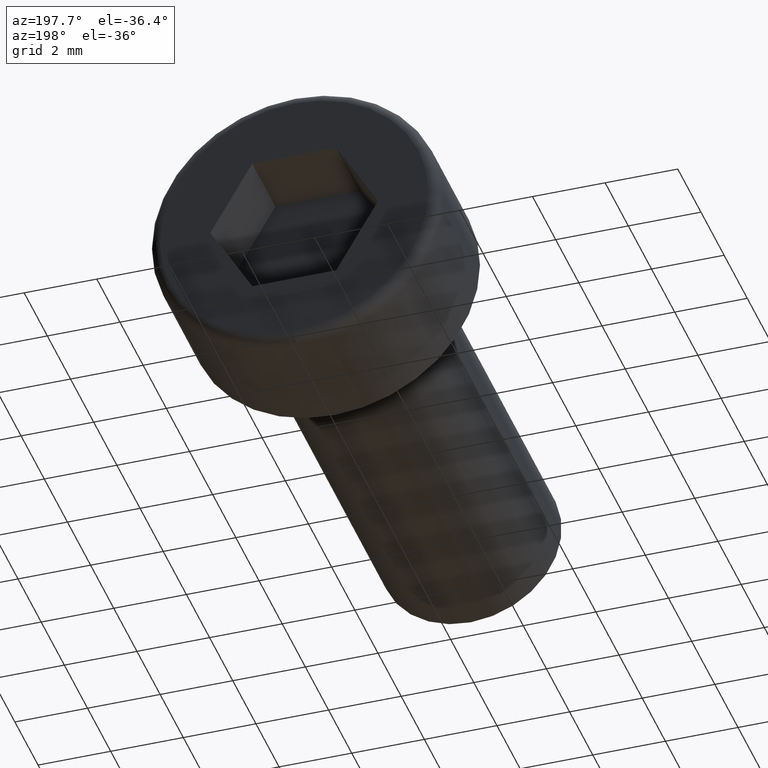
[diagram: clean part render]
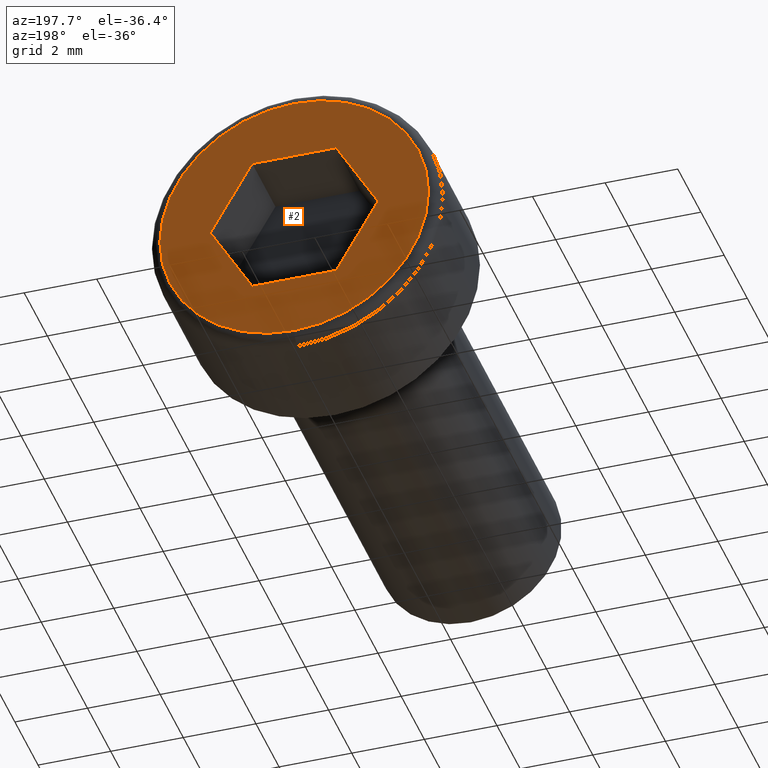
[diagram: same view with one face highlighted and labeled with its STEP entity id]
A machine part, auxiliary view. The second image highlights one B-rep face of the part: STEP entity #2.
In plain terms, the highlighted planar face has unit normal (0, 1, 0).
Its self-contained STEP definition (entity closure, byte-faithful):
#2 = ADVANCED_FACE ( 'NONE', ( #287, #289 ), #306, .T. ) ;
#3 = VECTOR ( 'NONE', #100, 1000.000000000000000 ) ;
#5 = LINE ( 'NONE', #95, #3 ) ;
#6 = VECTOR ( 'NONE', #156, 1000.000000000000100 ) ;
#13 = VECTOR ( 'NONE', #177, 1000.000000000000200 ) ;
#14 = LINE ( 'NONE', #171, #13 ) ;
#16 = LINE ( 'NONE', #167, #17 ) ;
#17 = VECTOR ( 'NONE', #159, 1000.000000000000000 ) ;
#22 = DIRECTION ( 'NONE',  ( 0.0000000000000000000, 0.0000000000000000000, 1.000000000000000000 ) ) ;
#30 = DIRECTION ( 'NONE',  ( 0.0000000000000000000, 1.000000000000000000, 0.0000000000000000000 ) ) ;
#32 = CARTESIAN_POINT ( 'NONE',  ( 0.0000000000000000000, 3.500000000000000000, 0.0000000000000000000 ) ) ;
#49 = CARTESIAN_POINT ( 'NONE',  ( -1.154700538379250400, 3.500000000000000000, 2.000000000000000900 ) ) ;
#58 = CARTESIAN_POINT ( 'NONE',  ( 1.154700538379250800, 3.500000000000000000, 2.000000000000000900 ) ) ;
#95 = CARTESIAN_POINT ( 'NONE',  ( 1.154700538379251200, 3.500000000000000000, -1.999999999999999100 ) ) ;
#100 = DIRECTION ( 'NONE',  ( -1.000000000000000000, 0.0000000000000000000, 1.877893248421447300E-016 ) ) ;
#107 = CARTESIAN_POINT ( 'NONE',  ( -1.154700538379254100, 3.500000000000000000, -1.999999999999998700 ) ) ;
#108 = DIRECTION ( 'NONE',  ( -0.4999999999999998900, 0.0000000000000000000, 0.8660254037844386000 ) ) ;
#147 = DIRECTION ( 'NONE',  ( 0.0000000000000000000, 0.0000000000000000000, 1.000000000000000000 ) ) ;
#148 = DIRECTION ( 'NONE',  ( 0.0000000000000000000, 1.000000000000000000, 0.0000000000000000000 ) ) ;
#149 = CARTESIAN_POINT ( 'NONE',  ( 0.0000000000000000000, 3.500000000000000000, 0.0000000000000000000 ) ) ;
#156 = DIRECTION ( 'NONE',  ( 0.5000000000000003300, 0.0000000000000000000, 0.8660254037844384900 ) ) ;
#159 = DIRECTION ( 'NONE',  ( 1.000000000000000000, 0.0000000000000000000, 0.0000000000000000000 ) ) ;
#160 = DIRECTION ( 'NONE',  ( 0.5000000000000001100, 0.0000000000000000000, -0.8660254037844386000 ) ) ;
#161 = CARTESIAN_POINT ( 'NONE',  ( -2.309401076758504300, 3.500000000000000000, -1.722390880164080500E-015 ) ) ;
#166 = CARTESIAN_POINT ( 'NONE',  ( 1.154700538379250800, 3.500000000000000000, 2.000000000000000900 ) ) ;
#167 = CARTESIAN_POINT ( 'NONE',  ( -1.154700538379250400, 3.500000000000000000, 2.000000000000000900 ) ) ;
#171 = CARTESIAN_POINT ( 'NONE',  ( 2.309401076758502900, 3.500000000000000000, 4.821375040128190100E-016 ) ) ;
#177 = DIRECTION ( 'NONE',  ( -0.5000000000000001100, 0.0000000000000000000, -0.8660254037844384900 ) ) ;
#187 = CARTESIAN_POINT ( 'NONE',  ( 0.0000000000000000000, 3.500000000000000000, 3.700000000000000200 ) ) ;
#195 = CARTESIAN_POINT ( 'NONE',  ( 2.309401076758502900, 3.500000000000000000, 4.821375040128190100E-016 ) ) ;
#200 = CARTESIAN_POINT ( 'NONE',  ( 4.714890176717309500E-016, 3.500000000000000000, -3.700000000000000200 ) ) ;
#206 = CARTESIAN_POINT ( 'NONE',  ( 1.154700538379251200, 3.500000000000000000, -1.999999999999999100 ) ) ;
#208 = CARTESIAN_POINT ( 'NONE',  ( -2.309401076758504700, 3.500000000000000000, -1.517883041479706200E-015 ) ) ;
#209 = CIRCLE ( 'NONE', #471, 3.700000000000000200 ) ;
#212 = LINE ( 'NONE', #107, #218 ) ;
#218 = VECTOR ( 'NONE', #108, 1000.000000000000200 ) ;
#287 = FACE_BOUND ( 'NONE', #398, .T. ) ;
#289 = FACE_OUTER_BOUND ( 'NONE', #399, .T. ) ;
#294 = ORIENTED_EDGE ( 'NONE', *, *, #435, .T. ) ;
#298 = CIRCLE ( 'NONE', #464, 3.700000000000000200 ) ;
#300 = VECTOR ( 'NONE', #160, 1000.000000000000100 ) ;
#306 = PLANE ( 'NONE',  #451 ) ;
#307 = DIRECTION ( 'NONE',  ( 0.0000000000000000000, -0.0000000000000000000, 1.000000000000000000 ) ) ;
#308 = DIRECTION ( 'NONE',  ( 0.0000000000000000000, 1.000000000000000000, 0.0000000000000000000 ) ) ;
#309 = CARTESIAN_POINT ( 'NONE',  ( 0.0000000000000000000, 3.500000000000000000, 0.0000000000000000000 ) ) ;
#310 = CARTESIAN_POINT ( 'NONE',  ( -1.154700538379254100, 3.500000000000000000, -1.999999999999998700 ) ) ;
#319 = VERTEX_POINT ( 'NONE', #208 ) ;
#323 = VERTEX_POINT ( 'NONE', #310 ) ;
#324 = VERTEX_POINT ( 'NONE', #49 ) ;
#326 = VERTEX_POINT ( 'NONE', #58 ) ;
#338 = VERTEX_POINT ( 'NONE', #206 ) ;
#340 = VERTEX_POINT ( 'NONE', #200 ) ;
#342 = VERTEX_POINT ( 'NONE', #195 ) ;
#347 = VERTEX_POINT ( 'NONE', #187 ) ;
#398 = EDGE_LOOP ( 'NONE', ( #513, #511, #512, #509, #507, #508 ) ) ;
#399 = EDGE_LOOP ( 'NONE', ( #505, #294 ) ) ;
#413 = EDGE_CURVE ( 'NONE', #323, #319, #212, .T. ) ;
#415 = EDGE_CURVE ( 'NONE', #338, #323, #5, .T. ) ;
#420 = EDGE_CURVE ( 'NONE', #347, #340, #298, .T. ) ;
#431 = EDGE_CURVE ( 'NONE', #342, #338, #14, .T. ) ;
#432 = EDGE_CURVE ( 'NONE', #326, #342, #557, .T. ) ;
#433 = EDGE_CURVE ( 'NONE', #324, #326, #16, .T. ) ;
#434 = EDGE_CURVE ( 'NONE', #319, #324, #555, .T. ) ;
#435 = EDGE_CURVE ( 'NONE', #340, #347, #209, .T. ) ;
#451 = AXIS2_PLACEMENT_3D ( 'NONE', #309, #308, #307 ) ;
#464 = AXIS2_PLACEMENT_3D ( 'NONE', #32, #30, #22 ) ;
#471 = AXIS2_PLACEMENT_3D ( 'NONE', #149, #148, #147 ) ;
#505 = ORIENTED_EDGE ( 'NONE', *, *, #420, .T. ) ;
#507 = ORIENTED_EDGE ( 'NONE', *, *, #433, .F. ) ;
#508 = ORIENTED_EDGE ( 'NONE', *, *, #434, .F. ) ;
#509 = ORIENTED_EDGE ( 'NONE', *, *, #432, .F. ) ;
#511 = ORIENTED_EDGE ( 'NONE', *, *, #415, .F. ) ;
#512 = ORIENTED_EDGE ( 'NONE', *, *, #431, .F. ) ;
#513 = ORIENTED_EDGE ( 'NONE', *, *, #413, .F. ) ;
#555 = LINE ( 'NONE', #161, #6 ) ;
#557 = LINE ( 'NONE', #166, #300 ) ;